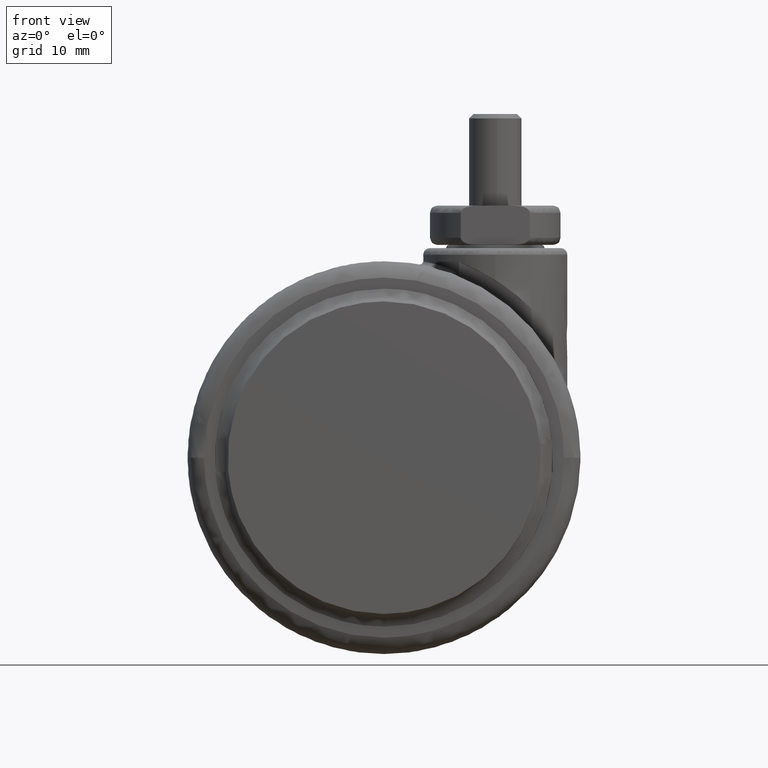
[diagram: clean part render]
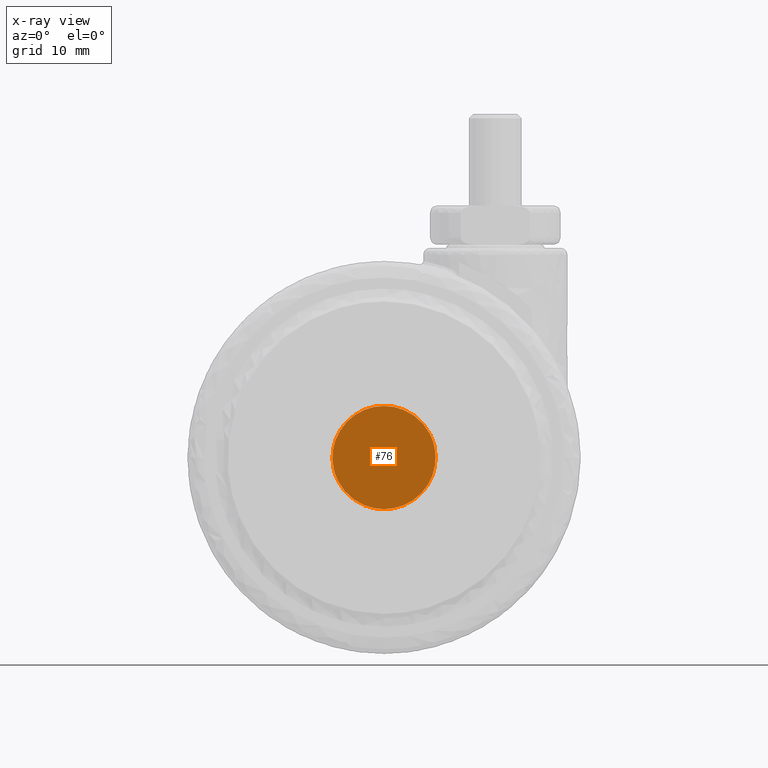
[diagram: x-ray — body ghosted, one internal face saturated and labeled with its STEP entity id]
A machine part, front view, then the same camera in x-ray: the body is ghosted and one INTERNAL B-rep face — a face not visible from any outside direction — is saturated and labeled: STEP entity #76.
In plain terms, the highlighted face is a freeform B-spline surface patch.
Its self-contained STEP definition (entity closure, byte-faithful):
#5=CARTESIAN_POINT('',(8.668936951341076,8.499999999999998,8.669374385220493));
#6=CARTESIAN_POINT('',(8.668936951341076,8.499999999999998,-8.669374808042097));
#7=CARTESIAN_POINT('',(-8.668936388123894,8.500000000000002,8.669374385220493));
#8=CARTESIAN_POINT('',(-8.668936388123894,8.500000000000002,-8.669374808042097));
#9=B_SPLINE_SURFACE_WITH_KNOTS('',1,1,((#5,#7),(#6,#8)),.UNSPECIFIED.,.F.,.F.,.U.,(2,2),(2,2),(0.0,17.338749193262590),(0.0,17.337873339464970),.UNSPECIFIED.);
#10=CARTESIAN_POINT('',(1.040915E-015,8.500000000000000,-7.881966011250159));
#11=VERTEX_POINT('',#10);
#12=CARTESIAN_POINT('',(7.045227729191132,8.500000000000000,3.534141271733713));
#13=VERTEX_POINT('',#12);
#14=CARTESIAN_POINT('',(1.040915E-015,8.500000000000000,-7.881966011250159));
#15=CARTESIAN_POINT('',(7.881966012688912,8.499999999999998,-7.881966010528427));
#16=CARTESIAN_POINT('',(7.881966015020272,8.500000000000000,1.891226E-009));
#17=CARTESIAN_POINT('',(7.881966015572239,8.500000000000000,1.866123123325072));
#18=CARTESIAN_POINT('',(7.045227729191132,8.500000000000000,3.534141271733713));
#26=(BOUNDED_CURVE()B_SPLINE_CURVE(2,(#14,#15,#16,#17,#18),.UNSPECIFIED.,.F.,.U.)B_SPLINE_CURVE_WITH_KNOTS((3,2,3),(0.0,0.250000000000000,0.326230937887741),.UNSPECIFIED.)CURVE()GEOMETRIC_REPRESENTATION_ITEM()RATIONAL_B_SPLINE_CURVE((1.0,0.707106781186548,1.0,0.910689900915565,0.875845342759558))REPRESENTATION_ITEM(''));
#27=EDGE_CURVE('',#11,#13,#26,.T.);
#28=ORIENTED_EDGE('',*,*,#27,.T.);
#29=CARTESIAN_POINT('',(1.040915E-015,8.500000000000000,7.881966011250159));
#30=VERTEX_POINT('',#29);
#31=CARTESIAN_POINT('',(7.045227729191132,8.500000000000000,3.534141271733713));
#32=CARTESIAN_POINT('',(4.864201441678153,8.500000000000004,7.881966012419653));
#33=CARTESIAN_POINT('',(1.040915E-015,8.500000000000000,7.881966011250159));
#41=(BOUNDED_CURVE()B_SPLINE_CURVE(2,(#31,#32,#33),.UNSPECIFIED.,.F.,.U.)B_SPLINE_CURVE_WITH_KNOTS((3,3),(0.326230937887741,0.500000000000000),.UNSPECIFIED.)CURVE()GEOMETRIC_REPRESENTATION_ITEM()RATIONAL_B_SPLINE_CURVE((0.875845342759558,0.796416880270982,1.0))REPRESENTATION_ITEM(''));
#42=EDGE_CURVE('',#13,#30,#41,.T.);
#43=ORIENTED_EDGE('',*,*,#42,.T.);
#44=CARTESIAN_POINT('',(-7.045227729191130,8.500000000000000,-3.534141271733715));
#45=VERTEX_POINT('',#44);
#46=CARTESIAN_POINT('',(1.040915E-015,8.500000000000000,7.881966011250159));
#47=CARTESIAN_POINT('',(-7.881966012688912,8.500000000000002,7.881966010528429));
#48=CARTESIAN_POINT('',(-7.881966015020272,8.500000000000002,-1.891224E-009));
#49=CARTESIAN_POINT('',(-7.881966015572242,8.500000000000002,-1.866123123325072));
#50=CARTESIAN_POINT('',(-7.045227729191130,8.500000000000000,-3.534141271733715));
#58=(BOUNDED_CURVE()B_SPLINE_CURVE(2,(#46,#47,#48,#49,#50),.UNSPECIFIED.,.F.,.U.)B_SPLINE_CURVE_WITH_KNOTS((3,2,3),(0.500000000000000,0.750000000000000,0.826230937887741),.UNSPECIFIED.)CURVE()GEOMETRIC_REPRESENTATION_ITEM()RATIONAL_B_SPLINE_CURVE((1.0,0.707106781186548,1.0,0.910689900915565,0.875845342759558))REPRESENTATION_ITEM(''));
#59=EDGE_CURVE('',#30,#45,#58,.T.);
#60=ORIENTED_EDGE('',*,*,#59,.T.);
#61=CARTESIAN_POINT('',(-7.045227729191130,8.500000000000000,-3.534141271733715));
#62=CARTESIAN_POINT('',(-4.864201441678150,8.500000000000000,-7.881966012419653));
#63=CARTESIAN_POINT('',(1.040915E-015,8.500000000000000,-7.881966011250159));
#71=(BOUNDED_CURVE()B_SPLINE_CURVE(2,(#61,#62,#63),.UNSPECIFIED.,.F.,.U.)B_SPLINE_CURVE_WITH_KNOTS((3,3),(0.826230937887741,1.0),.UNSPECIFIED.)CURVE()GEOMETRIC_REPRESENTATION_ITEM()RATIONAL_B_SPLINE_CURVE((0.875845342759558,0.796416880270983,1.0))REPRESENTATION_ITEM(''));
#72=EDGE_CURVE('',#45,#11,#71,.T.);
#73=ORIENTED_EDGE('',*,*,#72,.T.);
#74=EDGE_LOOP('',(#28,#43,#60,#73));
#75=FACE_OUTER_BOUND('',#74,.T.);
#76=ADVANCED_FACE('',(#75),#9,.F.);